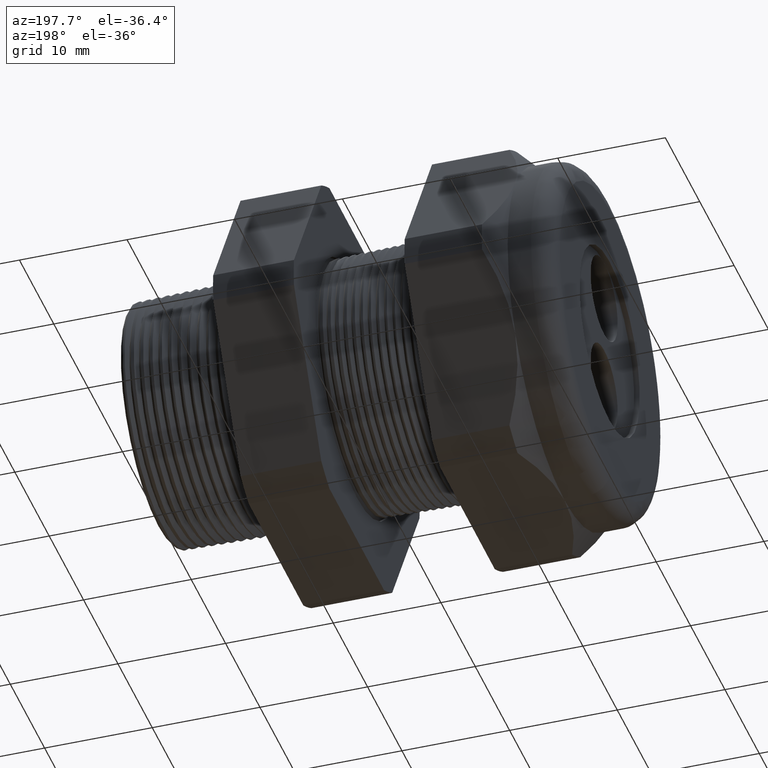
[diagram: clean part render]
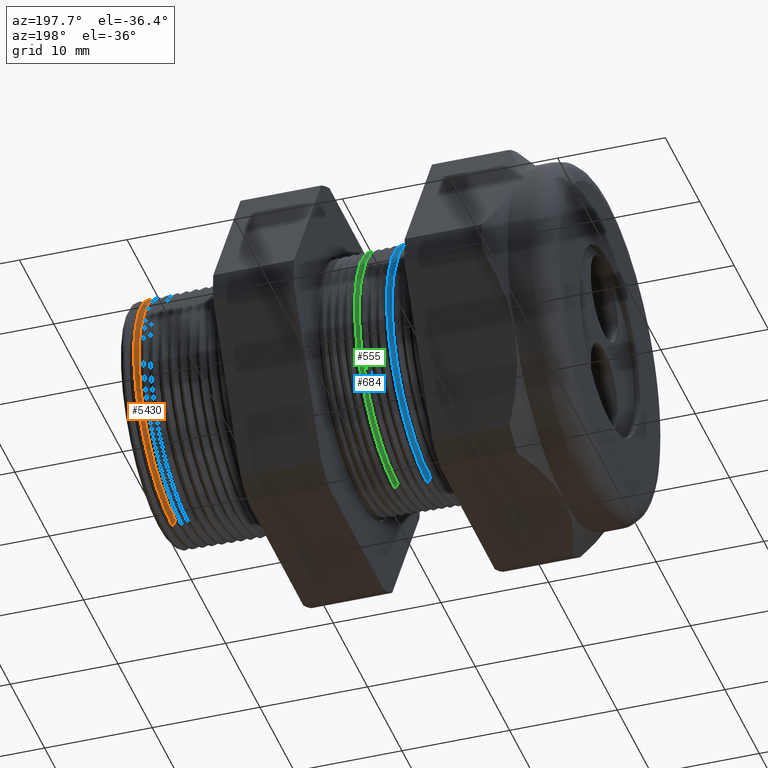
[diagram: same view with three faces highlighted in distinct colors, each labeled with its STEP entity id]
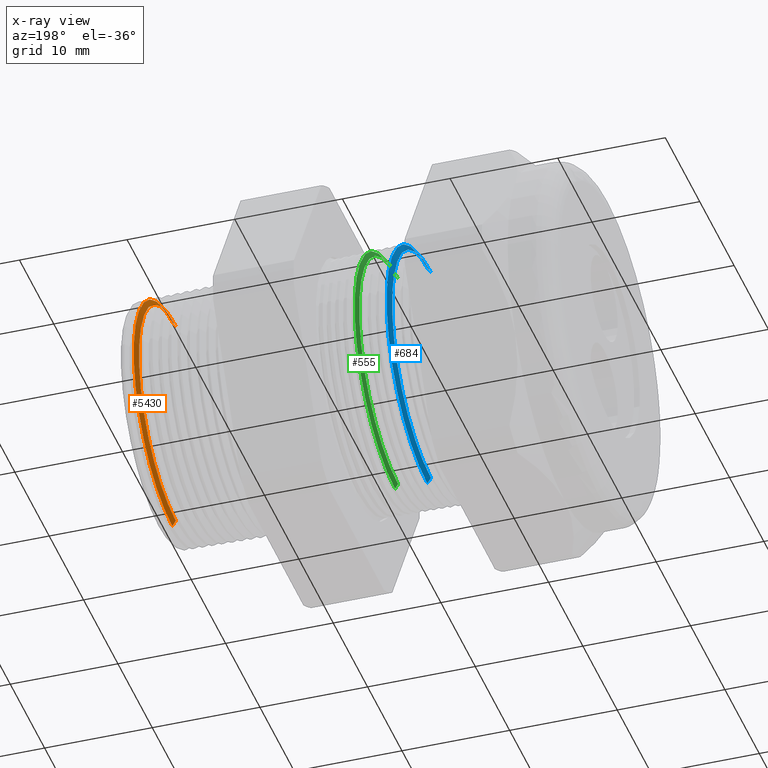
[diagram: x-ray of the same camera — body ghosted, the three highlighted faces saturated]
A machine part, auxiliary view with three faces highlighted in distinct colors.
The next image is the same camera in x-ray (body ghosted, the three faces saturated) — at least one of them is partly hidden behind the body in this view.
Their STEP definitions:

[orange] entity #5430 — the highlighted conical surface has half-angle 58.5 deg.
#939 = VERTEX_POINT ( 'NONE', #3223 ) ;
#949 = ORIENTED_EDGE ( 'NONE', *, *, #5618, .T. ) ;
#3223 = CARTESIAN_POINT ( 'NONE',  ( 0.05652926432092481000, 0.0000000000000000000, 0.4212184895733915900 ) ) ;
#4087 = VERTEX_POINT ( 'NONE', #4556 ) ;
#4220 = EDGE_LOOP ( 'NONE', ( #949, #5604, #5516, #5566 ) ) ;
#4556 = CARTESIAN_POINT ( 'NONE',  ( 0.05652926432092481000, 5.287919790946048300E-017, -0.4212184895733915900 ) ) ;
#4857 = DIRECTION ( 'NONE',  ( 0.0000000000000000000, 0.0000000000000000000, -1.000000000000000000 ) ) ;
#4858 = DIRECTION ( 'NONE',  ( 1.000000000000000000, 0.0000000000000000000, 0.0000000000000000000 ) ) ;
#4859 = CARTESIAN_POINT ( 'NONE',  ( 0.05652926432092481000, 0.0000000000000000000, 0.0000000000000000000 ) ) ;
#4860 = AXIS2_PLACEMENT_3D ( 'NONE', #4859, #4858, #4857 ) ;
#4862 = CONICAL_SURFACE ( 'NONE', #4860, 0.4212184895733915900, 1.021017612416699400 ) ;
#4863 = FACE_OUTER_BOUND ( 'NONE', #4220, .T. ) ;
#4941 = DIRECTION ( 'NONE',  ( 0.0000000000000000000, 0.0000000000000000000, -1.000000000000000000 ) ) ;
#4942 = DIRECTION ( 'NONE',  ( -1.000000000000000000, 0.0000000000000000000, 0.0000000000000000000 ) ) ;
#4943 = CARTESIAN_POINT ( 'NONE',  ( 0.06910148289796844100, 0.0000000000000000000, 0.0000000000000000000 ) ) ;
#4944 = AXIS2_PLACEMENT_3D ( 'NONE', #4943, #4942, #4941 ) ;
#4945 = CIRCLE ( 'NONE', #4944, 0.4417344856692956300 ) ;
#4946 = CARTESIAN_POINT ( 'NONE',  ( 0.06910148289796844100, 5.409687239479051700E-017, -0.4417344856692956300 ) ) ;
#5059 = DIRECTION ( 'NONE',  ( 0.5224985647159347000, 0.0000000000000000000, -0.8526401643541008400 ) ) ;
#5060 = VECTOR ( 'NONE', #5059, 39.37007874015748100 ) ;
#5061 = CARTESIAN_POINT ( 'NONE',  ( 0.05652926432092481000, 0.0000000000000000000, -0.4212184895733915900 ) ) ;
#5062 = LINE ( 'NONE', #5061, #5060 ) ;
#5110 = DIRECTION ( 'NONE',  ( 0.0000000000000000000, 0.0000000000000000000, -1.000000000000000000 ) ) ;
#5111 = DIRECTION ( 'NONE',  ( 1.000000000000000000, 0.0000000000000000000, 0.0000000000000000000 ) ) ;
#5112 = CARTESIAN_POINT ( 'NONE',  ( 0.05652926432092481000, 0.0000000000000000000, 0.0000000000000000000 ) ) ;
#5113 = AXIS2_PLACEMENT_3D ( 'NONE', #5112, #5111, #5110 ) ;
#5114 = CIRCLE ( 'NONE', #5113, 0.4212184895733915900 ) ;
#5115 = DIRECTION ( 'NONE',  ( 0.5224985647159347000, 1.044183048100722800E-016, 0.8526401643541008400 ) ) ;
#5116 = VECTOR ( 'NONE', #5115, 39.37007874015748100 ) ;
#5117 = CARTESIAN_POINT ( 'NONE',  ( 0.05652926432092481000, 5.158438749977368000E-017, 0.4212184895733915900 ) ) ;
#5118 = LINE ( 'NONE', #5117, #5116 ) ;
#5129 = CARTESIAN_POINT ( 'NONE',  ( 0.06910148289796844100, 0.0000000000000000000, 0.4417344856692956300 ) ) ;
#5430 = ADVANCED_FACE ( 'NONE', ( #4863 ), #4862, .T. ) ;
#5516 = ORIENTED_EDGE ( 'NONE', *, *, #5521, .T. ) ;
#5517 = VERTEX_POINT ( 'NONE', #4946 ) ;
#5521 = EDGE_CURVE ( 'NONE', #5609, #5517, #4945, .T. ) ;
#5566 = ORIENTED_EDGE ( 'NONE', *, *, #5568, .F. ) ;
#5568 = EDGE_CURVE ( 'NONE', #4087, #5517, #5062, .T. ) ;
#5604 = ORIENTED_EDGE ( 'NONE', *, *, #5617, .T. ) ;
#5609 = VERTEX_POINT ( 'NONE', #5129 ) ;
#5617 = EDGE_CURVE ( 'NONE', #939, #5609, #5118, .T. ) ;
#5618 = EDGE_CURVE ( 'NONE', #4087, #939, #5114, .T. ) ;

[blue] entity #684 — the highlighted conical surface has half-angle 58.5 deg.
#662 = ORIENTED_EDGE ( 'NONE', *, *, #663, .T. ) ;
#663 = EDGE_CURVE ( 'NONE', #689, #690, #2731, .T. ) ;
#664 = ORIENTED_EDGE ( 'NONE', *, *, #665, .T. ) ;
#665 = EDGE_CURVE ( 'NONE', #690, #666, #2724, .T. ) ;
#666 = VERTEX_POINT ( 'NONE', #2719 ) ;
#667 = ORIENTED_EDGE ( 'NONE', *, *, #668, .F. ) ;
#668 = EDGE_CURVE ( 'NONE', #688, #666, #2718, .T. ) ;
#684 = ADVANCED_FACE ( 'NONE', ( #2751 ), #2749, .T. ) ;
#685 = EDGE_LOOP ( 'NONE', ( #686, #662, #664, #667 ) ) ;
#686 = ORIENTED_EDGE ( 'NONE', *, *, #687, .T. ) ;
#687 = EDGE_CURVE ( 'NONE', #688, #689, #2743, .T. ) ;
#688 = VERTEX_POINT ( 'NONE', #2739 ) ;
#689 = VERTEX_POINT ( 'NONE', #2738 ) ;
#690 = VERTEX_POINT ( 'NONE', #2737 ) ;
#2715 = DIRECTION ( 'NONE',  ( 0.5224985647159348100, 0.0000000000000000000, -0.8526401643541007300 ) ) ;
#2716 = VECTOR ( 'NONE', #2715, 39.37007874015748900 ) ;
#2717 = CARTESIAN_POINT ( 'NONE',  ( -0.8765405736958171700, 0.0000000000000000000, -0.4446307351718083400 ) ) ;
#2718 = LINE ( 'NONE', #2717, #2716 ) ;
#2719 = CARTESIAN_POINT ( 'NONE',  ( -0.8633525379665555300, 5.708711304084992300E-017, -0.4661516535265203800 ) ) ;
#2720 = DIRECTION ( 'NONE',  ( 0.0000000000000000000, 0.0000000000000000000, -1.000000000000000000 ) ) ;
#2721 = DIRECTION ( 'NONE',  ( -1.000000000000000000, 0.0000000000000000000, 0.0000000000000000000 ) ) ;
#2722 = CARTESIAN_POINT ( 'NONE',  ( -0.8633525379665555300, 0.0000000000000000000, 0.0000000000000000000 ) ) ;
#2723 = AXIS2_PLACEMENT_3D ( 'NONE', #2722, #2721, #2720 ) ;
#2724 = CIRCLE ( 'NONE', #2723, 0.4661516535265203300 ) ;
#2725 = DIRECTION ( 'NONE',  ( 0.5224985647159348100, 1.044183048100722500E-016, 0.8526401643541007300 ) ) ;
#2726 = VECTOR ( 'NONE', #2725, 39.37007874015748900 ) ;
#2727 = CARTESIAN_POINT ( 'NONE',  ( -0.8765405736958171700, 5.445156066306895900E-017, 0.4446307351718083400 ) ) ;
#2731 = LINE ( 'NONE', #2727, #2726 ) ;
#2737 = CARTESIAN_POINT ( 'NONE',  ( -0.8633525379665555300, 0.0000000000000000000, 0.4661516535265203800 ) ) ;
#2738 = CARTESIAN_POINT ( 'NONE',  ( -0.8765405736958171700, 0.0000000000000000000, 0.4446307351718083400 ) ) ;
#2739 = CARTESIAN_POINT ( 'NONE',  ( -0.8765405736958171700, 5.580979396460794700E-017, -0.4446307351718083400 ) ) ;
#2740 = DIRECTION ( 'NONE',  ( 0.0000000000000000000, 0.0000000000000000000, -1.000000000000000000 ) ) ;
#2741 = DIRECTION ( 'NONE',  ( 1.000000000000000000, 0.0000000000000000000, 0.0000000000000000000 ) ) ;
#2742 = AXIS2_PLACEMENT_3D ( 'NONE', #2750, #2741, #2740 ) ;
#2743 = CIRCLE ( 'NONE', #2742, 0.4446307351718083400 ) ;
#2745 = DIRECTION ( 'NONE',  ( 0.0000000000000000000, 0.0000000000000000000, -1.000000000000000000 ) ) ;
#2746 = DIRECTION ( 'NONE',  ( 1.000000000000000000, 0.0000000000000000000, 0.0000000000000000000 ) ) ;
#2747 = CARTESIAN_POINT ( 'NONE',  ( -0.8765405736958171700, 0.0000000000000000000, 0.0000000000000000000 ) ) ;
#2748 = AXIS2_PLACEMENT_3D ( 'NONE', #2747, #2746, #2745 ) ;
#2749 = CONICAL_SURFACE ( 'NONE', #2748, 0.4446307351718083400, 1.021017612416699200 ) ;
#2750 = CARTESIAN_POINT ( 'NONE',  ( -0.8765405736958171700, 0.0000000000000000000, 0.0000000000000000000 ) ) ;
#2751 = FACE_OUTER_BOUND ( 'NONE', #685, .T. ) ;

[green] entity #555 — the highlighted conical surface has half-angle 58.5 deg.
#555 = ADVANCED_FACE ( 'NONE', ( #2440 ), #2439, .T. ) ;
#556 = EDGE_LOOP ( 'NONE', ( #557, #608, #601, #604 ) ) ;
#557 = ORIENTED_EDGE ( 'NONE', *, *, #558, .T. ) ;
#558 = EDGE_CURVE ( 'NONE', #1486, #606, #2497, .T. ) ;
#600 = EDGE_CURVE ( 'NONE', #606, #607, #2592, .T. ) ;
#601 = ORIENTED_EDGE ( 'NONE', *, *, #602, .T. ) ;
#602 = EDGE_CURVE ( 'NONE', #607, #603, #2588, .T. ) ;
#603 = VERTEX_POINT ( 'NONE', #2583 ) ;
#604 = ORIENTED_EDGE ( 'NONE', *, *, #605, .F. ) ;
#605 = EDGE_CURVE ( 'NONE', #1486, #603, #2582, .T. ) ;
#606 = VERTEX_POINT ( 'NONE', #2578 ) ;
#607 = VERTEX_POINT ( 'NONE', #2576 ) ;
#608 = ORIENTED_EDGE ( 'NONE', *, *, #600, .T. ) ;
#1486 = VERTEX_POINT ( 'NONE', #4374 ) ;
#2439 = CONICAL_SURFACE ( 'NONE', #2501, 0.4446307351718083400, 1.021017612416699200 ) ;
#2440 = FACE_OUTER_BOUND ( 'NONE', #556, .T. ) ;
#2494 = DIRECTION ( 'NONE',  ( 0.0000000000000000000, 0.0000000000000000000, -1.000000000000000000 ) ) ;
#2495 = DIRECTION ( 'NONE',  ( 1.000000000000000000, 0.0000000000000000000, 0.0000000000000000000 ) ) ;
#2496 = AXIS2_PLACEMENT_3D ( 'NONE', #2502, #2495, #2494 ) ;
#2497 = CIRCLE ( 'NONE', #2496, 0.4446307351718083400 ) ;
#2498 = DIRECTION ( 'NONE',  ( 0.0000000000000000000, 0.0000000000000000000, -1.000000000000000000 ) ) ;
#2499 = DIRECTION ( 'NONE',  ( 1.000000000000000000, 0.0000000000000000000, 0.0000000000000000000 ) ) ;
#2500 = CARTESIAN_POINT ( 'NONE',  ( -0.7565405736958171800, 0.0000000000000000000, 0.0000000000000000000 ) ) ;
#2501 = AXIS2_PLACEMENT_3D ( 'NONE', #2500, #2499, #2498 ) ;
#2502 = CARTESIAN_POINT ( 'NONE',  ( -0.7565405736958171800, 0.0000000000000000000, 0.0000000000000000000 ) ) ;
#2576 = CARTESIAN_POINT ( 'NONE',  ( -0.7452477365867903300, 0.0000000000000000000, 0.4630589704606462600 ) ) ;
#2578 = CARTESIAN_POINT ( 'NONE',  ( -0.7565405736958171800, 0.0000000000000000000, 0.4446307351718083400 ) ) ;
#2579 = DIRECTION ( 'NONE',  ( 0.5224985647159348100, 0.0000000000000000000, -0.8526401643541007300 ) ) ;
#2580 = VECTOR ( 'NONE', #2579, 39.37007874015748900 ) ;
#2581 = CARTESIAN_POINT ( 'NONE',  ( -0.7565405736958171800, 0.0000000000000000000, -0.4446307351718083400 ) ) ;
#2582 = LINE ( 'NONE', #2581, #2580 ) ;
#2583 = CARTESIAN_POINT ( 'NONE',  ( -0.7452477365867903300, 5.670836859910992700E-017, -0.4630589704606462600 ) ) ;
#2584 = DIRECTION ( 'NONE',  ( 0.0000000000000000000, 0.0000000000000000000, -1.000000000000000000 ) ) ;
#2585 = DIRECTION ( 'NONE',  ( -1.000000000000000000, 0.0000000000000000000, 0.0000000000000000000 ) ) ;
#2586 = CARTESIAN_POINT ( 'NONE',  ( -0.7452477365867903300, 0.0000000000000000000, 0.0000000000000000000 ) ) ;
#2587 = AXIS2_PLACEMENT_3D ( 'NONE', #2586, #2585, #2584 ) ;
#2588 = CIRCLE ( 'NONE', #2587, 0.4630589704606462600 ) ;
#2589 = DIRECTION ( 'NONE',  ( 0.5224985647159348100, 1.044183048100722500E-016, 0.8526401643541007300 ) ) ;
#2590 = VECTOR ( 'NONE', #2589, 39.37007874015748900 ) ;
#2591 = CARTESIAN_POINT ( 'NONE',  ( -0.7565405736958171800, 5.445156066306895900E-017, 0.4446307351718083400 ) ) ;
#2592 = LINE ( 'NONE', #2591, #2590 ) ;
#4374 = CARTESIAN_POINT ( 'NONE',  ( -0.7565405736958171800, 5.561460781771862500E-017, -0.4446307351718083400 ) ) ;